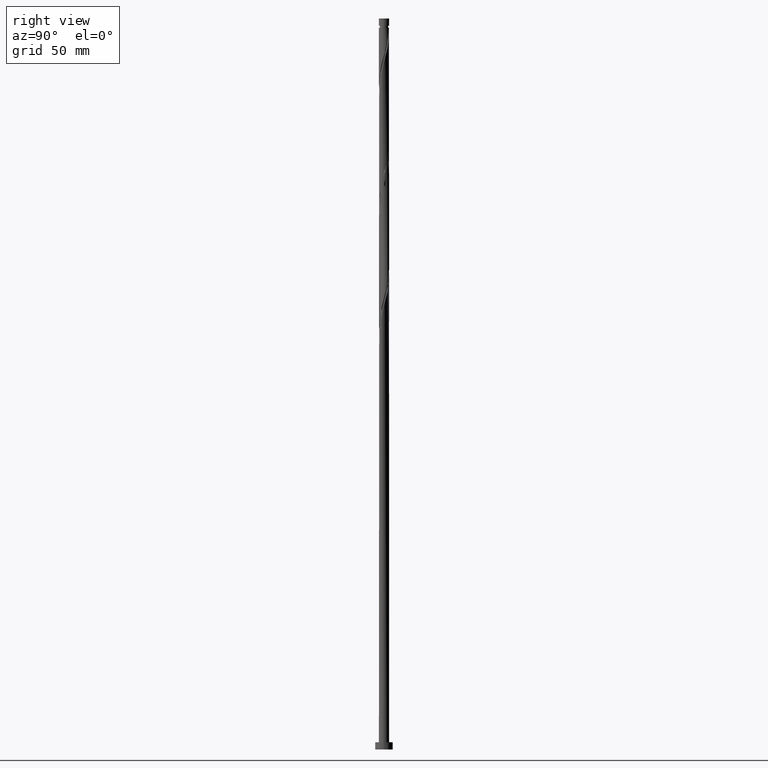
[diagram: clean part render]
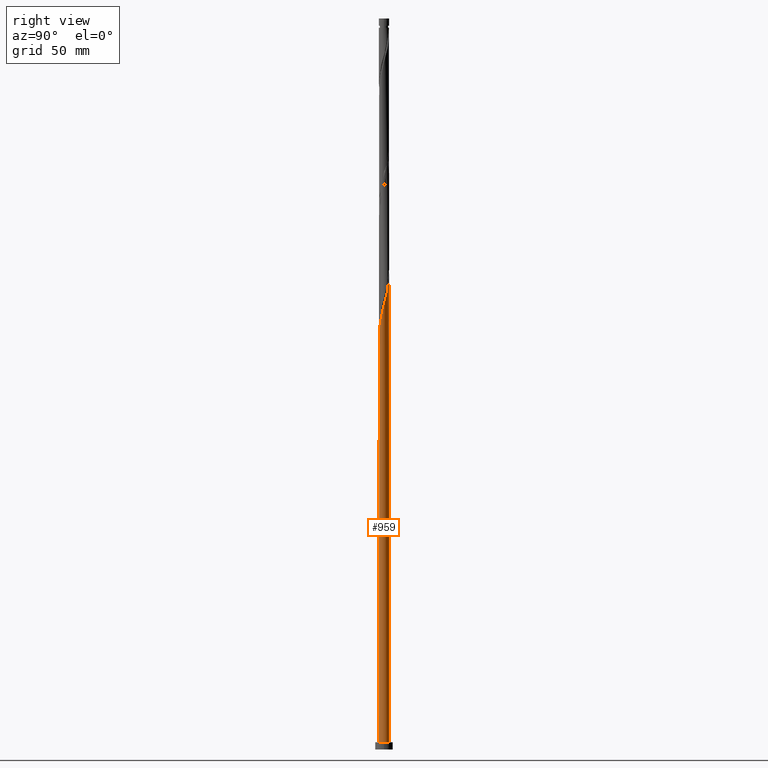
[diagram: same view with one face highlighted and labeled with its STEP entity id]
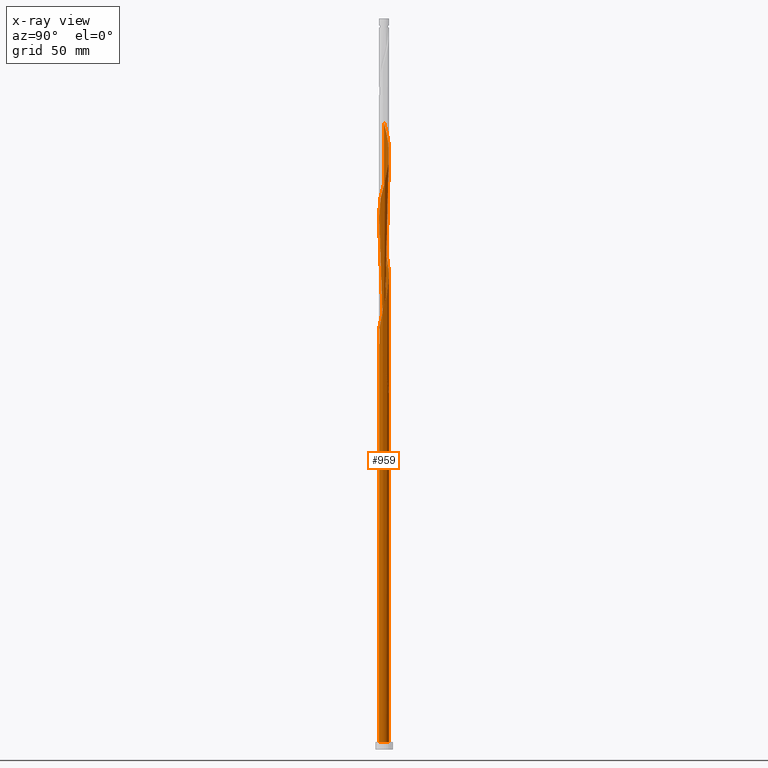
[diagram: x-ray of the same camera — body ghosted, the highlighted face saturated]
A machine part, right view. The second image highlights one B-rep face of the part: STEP entity #959.
The next image is the same camera in x-ray: the body ghosted, the highlighted face saturated — about 0% of this face is hidden behind the body in this view.
In plain terms, the highlighted cylindrical surface (bore or boss wall) has radius 3.5 mm, axis along (-0, -0, -1).
Its self-contained STEP definition (entity closure, byte-faithful):
#2 = CARTESIAN_POINT ( 'NONE',  ( -2.464990988598299460, -2.484717172261102558, 272.2755982235523788 ) ) ;
#10 = CARTESIAN_POINT ( 'NONE',  ( -3.108242234511735980, 1.645497502020135672, 422.0151815568856932 ) ) ;
#21 = CARTESIAN_POINT ( 'NONE',  ( -3.500000000000005329, 1.465902249526861745E-15, 261.8062345788887342 ) ) ;
#31 = CARTESIAN_POINT ( 'NONE',  ( -1.352268127265541686, 3.228214818128090524, 246.2339315568855795 ) ) ;
#35 = EDGE_CURVE ( 'NONE', #1387, #1543, #1063, .T. ) ;
#40 = CARTESIAN_POINT ( 'NONE',  ( -3.429999999999999272, 0.6964912059746389827, 264.4630982235522652 ) ) ;
#41 = CARTESIAN_POINT ( 'NONE',  ( -2.917869914251325358, 1.932882604688397121, 254.0464315568856080 ) ) ;
#47 = CARTESIAN_POINT ( 'NONE',  ( -1.670219535041369774, 3.095028032558543973, 330.8693482235523788 ) ) ;
#54 = CARTESIAN_POINT ( 'NONE',  ( -2.220267707356654796, 2.727497593990910296, 255.3485148902188655 ) ) ;
#60 = CARTESIAN_POINT ( 'NONE',  ( -3.435442441828192806, 0.6691302032381872822, 342.5880982235523788 ) ) ;
#65 = CARTESIAN_POINT ( 'NONE',  ( -1.007491750486607440, 3.369538869082595589, 250.1401815568856080 ) ) ;
#69 = CARTESIAN_POINT ( 'NONE',  ( 1.956078142786331409, -2.902371151199242494, 290.5047648902189508 ) ) ;
#81 = CARTESIAN_POINT ( 'NONE',  ( -0.3586656924595659213, 3.498598396302370794, 325.6610148902190076 ) ) ;
#90 = CARTESIAN_POINT ( 'NONE',  ( -0.3307686559897656253, -3.501346014573786913, 364.7235148902190076 ) ) ;
#116 = CARTESIAN_POINT ( 'NONE',  ( -3.228214818128090524, -1.352268127265541242, 350.4005982235523788 ) ) ;
#137 = ORIENTED_EDGE ( 'NONE', *, *, #1174, .T. ) ;
#139 = CARTESIAN_POINT ( 'NONE',  ( -2.709714269839941014, -2.241936750531294376, 270.9735148902190076 ) ) ;
#146 = CARTESIAN_POINT ( 'NONE',  ( -2.917869914251325358, 1.932882604688397121, 420.7130982235523220 ) ) ;
#156 = CARTESIAN_POINT ( 'NONE',  ( -2.241936750531293931, 2.709714269839941014, 416.8068482235524925 ) ) ;
#165 = CARTESIAN_POINT ( 'NONE',  ( -1.034316719489713376, 3.361401603697638851, 411.5985148902190076 ) ) ;
#179 = CARTESIAN_POINT ( 'NONE',  ( -3.500000000000007105, 0.3376793522514310308, 427.1969211401395228 ) ) ;
#193 = CARTESIAN_POINT ( 'NONE',  ( 2.917869914251324914, -1.932882604688397343, 295.7130982235522083 ) ) ;
#200 = CARTESIAN_POINT ( 'NONE',  ( -2.902371151199237165, 1.956078142786329632, 259.2547648902188939 ) ) ;
#206 = CARTESIAN_POINT ( 'NONE',  ( -0.01394851823489835253, 3.499972205438078632, 324.3589315568857501 ) ) ;
#216 = CARTESIAN_POINT ( 'NONE',  ( 3.435442441828192806, -0.6691302032381893916, 300.9214315568855795 ) ) ;
#238 = CARTESIAN_POINT ( 'NONE',  ( 3.095028032558544862, 1.670219535041368664, 310.0360148902190076 ) ) ;
#248 = CARTESIAN_POINT ( 'NONE',  ( 0.3586656924595647000, -3.498598396302370794, 367.3276815568856932 ) ) ;
#260 = CARTESIAN_POINT ( 'NONE',  ( -2.464990988598299460, -2.484717172261102558, 355.6089315568856364 ) ) ;
#291 = EDGE_CURVE ( 'NONE', #1731, #960, #1888, .T. ) ;
#296 = CARTESIAN_POINT ( 'NONE',  ( -2.484717172261103446, 2.464990988598299015, 418.1089315568855795 ) ) ;
#304 = DIRECTION ( 'NONE',  ( -1.000000000000000000, 0.000000000000000000, 0.000000000000000000 ) ) ;
#306 = CARTESIAN_POINT ( 'NONE',  ( 0.6691302032381896137, 3.435442441828192806, 405.0880982235523788 ) ) ;
#314 = CARTESIAN_POINT ( 'NONE',  ( -0.01394851823489835253, 3.499972205438078632, 407.6922648902190076 ) ) ;
#318 = CARTESIAN_POINT ( 'NONE',  ( -3.228214818128090524, -1.352268127265541242, 267.0672648902190076 ) ) ;
#324 = CARTESIAN_POINT ( 'NONE',  ( 1.645497502020138114, 3.108242234511735091, 401.1818482235524357 ) ) ;
#331 = CARTESIAN_POINT ( 'NONE',  ( -3.500000000000000000, 0.000000000000000000, 500.0000000000000000 ) ) ;
#336 = CARTESIAN_POINT ( 'NONE',  ( 2.902371151199241606, 1.956078142786332519, 394.6714315568856364 ) ) ;
#338 = CARTESIAN_POINT ( 'NONE',  ( -0.6691302032381876153, -3.435442441828192806, 280.0880982235522652 ) ) ;
#354 = CARTESIAN_POINT ( 'NONE',  ( -1.034316719489713376, 3.361401603697638851, 244.9318482235523220 ) ) ;
#358 = CARTESIAN_POINT ( 'NONE',  ( 1.326494626253372111, 3.238890551797167561, 319.1505982235523220 ) ) ;
#370 = CARTESIAN_POINT ( 'NONE',  ( 3.369538869082599586, -1.007491750486610105, 299.6193482235523788 ) ) ;
#375 = CARTESIAN_POINT ( 'NONE',  ( -3.228214818128085195, 1.352268127265539910, 261.8589315568855795 ) ) ;
#380 = CARTESIAN_POINT ( 'NONE',  ( 1.645497502020138114, 3.108242234511735091, 317.8485148902190076 ) ) ;
#381 = EDGE_CURVE ( 'NONE', #1512, #1731, #1283, .T. ) ;
#387 = VECTOR ( 'NONE', #1886, 1000.000000000000000 ) ;
#392 = CARTESIAN_POINT ( 'NONE',  ( 3.238890551797167561, -1.326494626253372111, 298.3172648902188939 ) ) ;
#407 = VERTEX_POINT ( 'NONE', #465 ) ;
#432 = CARTESIAN_POINT ( 'NONE',  ( -2.902371151199242050, -1.956078142786330964, 353.0047648902190076 ) ) ;
#454 = CARTESIAN_POINT ( 'NONE',  ( -3.499972205438078632, -0.01394851823489984613, 261.8589315568856364 ) ) ;
#460 = EDGE_CURVE ( 'NONE', #551, #1512, #1048, .T. ) ;
#462 = CARTESIAN_POINT ( 'NONE',  ( 3.238890551797167561, -1.326494626253372111, 381.6505982235523220 ) ) ;
#465 = CARTESIAN_POINT ( 'NONE',  ( -0.6964912059746383166, 3.430000000000003268, 243.6297648902189223 ) ) ;
#467 = CARTESIAN_POINT ( 'NONE',  ( -3.500000000000005329, 1.465902249526861745E-15, 428.4729012455554198 ) ) ;
#474 = CARTESIAN_POINT ( 'NONE',  ( 3.369538869082599586, -1.007491750486610105, 382.9526815568856932 ) ) ;
#483 = CYLINDRICAL_SURFACE ( 'NONE', #885, 3.500000000000000000 ) ;
#484 = CARTESIAN_POINT ( 'NONE',  ( 1.326494626253372111, 3.238890551797167561, 402.4839315568856932 ) ) ;
#485 = CARTESIAN_POINT ( 'NONE',  ( -2.220267707356660125, -2.727497593990912517, 273.5776815568856932 ) ) ;
#492 = CARTESIAN_POINT ( 'NONE',  ( -1.956078142786331853, 2.902371151199242050, 248.8380982235523220 ) ) ;
#504 = CARTESIAN_POINT ( 'NONE',  ( 3.499972205438078632, 0.01394851823489856243, 303.5255982235523788 ) ) ;
#510 = CARTESIAN_POINT ( 'NONE',  ( -2.484717172261103446, 2.464990988598299015, 251.4422648902189792 ) ) ;
#515 = CARTESIAN_POINT ( 'NONE',  ( 1.932882604688397565, 2.917869914251324470, 316.5464315568857501 ) ) ;
#535 = CARTESIAN_POINT ( 'NONE',  ( 2.709714269839941014, 2.241936750531293487, 312.6401815568856364 ) ) ;
#543 = AXIS2_PLACEMENT_3D ( 'NONE', #1093, #615, #304 ) ;
#544 = DIRECTION ( 'NONE',  ( 0.000000000000000000, 0.000000000000000000, 1.000000000000000000 ) ) ;
#551 = VERTEX_POINT ( 'NONE', #769 ) ;
#564 = CARTESIAN_POINT ( 'NONE',  ( 0.000000000000000000, 0.000000000000000000, 5.000000000000000000 ) ) ;
#592 = DIRECTION ( 'NONE',  ( -0.000000000000000000, -0.000000000000000000, -1.000000000000000000 ) ) ;
#595 = CARTESIAN_POINT ( 'NONE',  ( 2.709714269839941014, 2.241936750531293487, 395.9735148902190076 ) ) ;
#609 = CARTESIAN_POINT ( 'NONE',  ( -3.500000000000005329, 1.465902249526861745E-15, 261.8062345788887342 ) ) ;
#615 = DIRECTION ( 'NONE',  ( 0.000000000000000000, -0.000000000000000000, -1.000000000000000000 ) ) ;
#618 = CARTESIAN_POINT ( 'NONE',  ( 2.220267707356658793, 2.727497593990913849, 398.5776815568856932 ) ) ;
#625 = CARTESIAN_POINT ( 'NONE',  ( -1.956078142786331853, 2.902371151199242050, 415.5047648902189508 ) ) ;
#642 = CARTESIAN_POINT ( 'NONE',  ( 0.01394851823490045675, 3.499972205438072859, 246.2339315568855795 ) ) ;
#648 = CARTESIAN_POINT ( 'NONE',  ( 3.498598396302370794, 0.3586656924595661433, 304.8276815568857501 ) ) ;
#654 = CARTESIAN_POINT ( 'NONE',  ( -3.435442441828192806, 0.6691302032381872822, 259.2547648902189508 ) ) ;
#658 = CARTESIAN_POINT ( 'NONE',  ( -1.956078142786331853, 2.902371151199242050, 332.1714315568856932 ) ) ;
#666 = LINE ( 'NONE', #1284, #387 ) ;
#669 = CARTESIAN_POINT ( 'NONE',  ( -3.501346014573786913, 0.3307686559897652923, 343.8901815568856932 ) ) ;
#681 = CARTESIAN_POINT ( 'NONE',  ( 3.430000000000003268, 0.6964912059746386497, 306.1297648902190645 ) ) ;
#701 =( BOUNDED_CURVE ( )  B_SPLINE_CURVE ( 2, ( #1406, #354, #31, #1876, #492, #970, #510, #1415, #41, #948, #835, #1750, #654, #1574, #21 ),
 .UNSPECIFIED., .F., .T. ) 
 B_SPLINE_CURVE_WITH_KNOTS ( ( 3, 2, 2, 2, 2, 2, 2, 3 ),
 ( 0.000000000000000000, 0.007812500000000000000, 0.01562500000000000000, 0.02343750000000000000, 0.03125000000000000000, 0.03906250000000000000, 0.04687500000000000000, 0.05452869021808701838 ),
 .UNSPECIFIED. ) 
 CURVE ( )  GEOMETRIC_REPRESENTATION_ITEM ( )  RATIONAL_B_SPLINE_CURVE ( ( 0.9090909090909701229, 0.9047133878838761190, 0.9090909090909701229, 0.9047133878838761190, 0.9090909090909701229, 0.9047133878838761190, 0.9090909090909701229, 0.9047133878838761190, 0.9090909090909701229, 0.9047133878838761190, 0.9090909090909701229, 0.9047133878838761190, 0.9090909090909701229, 0.9048023726119680532, 0.9089165573359733186 ) ) 
 REPRESENTATION_ITEM ( '' )  );
#707 = ORIENTED_EDGE ( 'NONE', *, *, #786, .T. ) ;
#709 = CARTESIAN_POINT ( 'NONE',  ( -2.220267707356660125, -2.727497593990912517, 356.9110148902190076 ) ) ;
#734 = CARTESIAN_POINT ( 'NONE',  ( 0.000000000000000000, 0.000000000000000000, 5.000000000000000000 ) ) ;
#736 = CARTESIAN_POINT ( 'NONE',  ( 0.01394851823489888683, -3.499972205438078632, 366.0255982235523788 ) ) ;
#745 = CARTESIAN_POINT ( 'NONE',  ( -1.670219535041369774, 3.095028032558543973, 414.2026815568856364 ) ) ;
#746 = EDGE_CURVE ( 'NONE', #1543, #1387, #1084, .T. ) ;
#757 = CARTESIAN_POINT ( 'NONE',  ( 2.917869914251324914, -1.932882604688397343, 379.0464315568856364 ) ) ;
#769 = CARTESIAN_POINT ( 'NONE',  ( -3.500000000000005329, 1.465902249526861745E-15, 261.8062345788887342 ) ) ;
#771 = CARTESIAN_POINT ( 'NONE',  ( -3.361401603697638851, -1.034316719489713376, 265.7651815568856932 ) ) ;
#775 = CARTESIAN_POINT ( 'NONE',  ( 0.6964912059746396489, 3.429999999999999272, 243.6297648902189223 ) ) ;
#778 = CARTESIAN_POINT ( 'NONE',  ( 1.670219535041369330, -3.095028032558544862, 372.5360148902190076 ) ) ;
#786 = EDGE_CURVE ( 'NONE', #407, #960, #1754, .T. ) ;
#789 = ORIENTED_EDGE ( 'NONE', *, *, #381, .F. ) ;
#790 = CARTESIAN_POINT ( 'NONE',  ( 3.095028032558544862, 1.670219535041368664, 393.3693482235523788 ) ) ;
#798 = CARTESIAN_POINT ( 'NONE',  ( -0.3307686559897644041, 3.501346014573782028, 247.5360148902189223 ) ) ;
#803 = CARTESIAN_POINT ( 'NONE',  ( 3.501346014573786913, -0.3307686559897658474, 302.2235148902190076 ) ) ;
#804 = CARTESIAN_POINT ( 'NONE',  ( -3.500000000000000000, 0.000000000000000000, 5.000000000000000000 ) ) ;
#814 = CARTESIAN_POINT ( 'NONE',  ( -1.034316719489713376, 3.361401603697638851, 328.2651815568856364 ) ) ;
#826 = CARTESIAN_POINT ( 'NONE',  ( -3.238890551797167561, 1.326494626253372555, 339.9839315568856364 ) ) ;
#834 = CARTESIAN_POINT ( 'NONE',  ( -3.361401603697633078, 1.034316719489712710, 263.1610148902189508 ) ) ;
#835 = CARTESIAN_POINT ( 'NONE',  ( -3.238890551797167561, 1.326494626253372555, 256.6505982235523220 ) ) ;
#839 = CARTESIAN_POINT ( 'NONE',  ( -3.499999999999999112, -6.113362210359989773E-16, 267.1199618682157393 ) ) ;
#854 = ORIENTED_EDGE ( 'NONE', *, *, #1174, .F. ) ;
#885 = AXIS2_PLACEMENT_3D ( 'NONE', #1500, #592, #918 ) ;
#887 = CARTESIAN_POINT ( 'NONE',  ( -1.007491750486610105, -3.369538869082599586, 362.1193482235523220 ) ) ;
#910 = CARTESIAN_POINT ( 'NONE',  ( 3.501346014573786913, -0.3307686559897658474, 385.5568482235524357 ) ) ;
#918 = DIRECTION ( 'NONE',  ( -1.000000000000000000, 0.000000000000000000, 0.000000000000000000 ) ) ;
#921 = CARTESIAN_POINT ( 'NONE',  ( -3.500000000000005329, 1.465902249526861745E-15, 428.4729012455554198 ) ) ;
#928 = CARTESIAN_POINT ( 'NONE',  ( 3.228214818128089636, 1.352268127265541686, 392.0672648902190076 ) ) ;
#934 = CARTESIAN_POINT ( 'NONE',  ( -3.095028032558539088, 1.670219535041367775, 260.5568482235523220 ) ) ;
#938 = CARTESIAN_POINT ( 'NONE',  ( -3.435442441828192806, 0.6691302032381872822, 425.9214315568856932 ) ) ;
#940 = CARTESIAN_POINT ( 'NONE',  ( -0.3307686559897656253, -3.501346014573786913, 281.3901815568856364 ) ) ;
#948 = CARTESIAN_POINT ( 'NONE',  ( -3.108242234511735980, 1.645497502020135672, 255.3485148902189792 ) ) ;
#949 = EDGE_LOOP ( 'NONE', ( #789, #1889, #137, #1426, #1264, #854, #1357, #707, #1923 ) ) ;
#959 = ADVANCED_FACE ( 'NONE', ( #1652 ), #483, .T. ) ;
#960 = VERTEX_POINT ( 'NONE', #775 ) ;
#963 = CARTESIAN_POINT ( 'NONE',  ( 1.007491750486610549, 3.369538869082599142, 320.4526815568856932 ) ) ;
#969 = CARTESIAN_POINT ( 'NONE',  ( -1.645497502020132563, 3.108242234511732427, 252.7443482235522936 ) ) ;
#970 = CARTESIAN_POINT ( 'NONE',  ( -2.241936750531293931, 2.709714269839941014, 250.1401815568856080 ) ) ;
#973 = CARTESIAN_POINT ( 'NONE',  ( -2.727497593990913405, 2.220267707356659237, 336.0776815568857501 ) ) ;
#983 = CARTESIAN_POINT ( 'NONE',  ( -3.499972205438078632, -0.01394851823489984613, 345.1922648902190076 ) ) ;
#991 = CARTESIAN_POINT ( 'NONE',  ( -0.6964912059746384276, 3.430000000000003268, 326.9630982235524357 ) ) ;
#1039 = CARTESIAN_POINT ( 'NONE',  ( -1.932882604688397343, -2.917869914251324914, 358.2130982235523220 ) ) ;
#1045 = EDGE_CURVE ( 'NONE', #407, #551, #701, .T. ) ;
#1048 =( BOUNDED_CURVE ( )  B_SPLINE_CURVE ( 2, ( #609, #1836, #454, #1247, #1088, #771, #318, #1370, #1256, #139, #2, #485, #1817, #1096, #1698, #1226, #338, #940, #1860, #1107, #1360, #1828, #1076, #1408, #69, #1868, #1558, #1153, #193, #1744, #392, #370, #216, #803, #504, #648, #681, #1720, #1296, #238, #1899, #535, #1880, #1755, #515, #380, #358, #963, #1568, #1142, #206, #81, #991, #814, #1419, #47, #658, #1594, #1131, #973, #1277, #1579, #826, #1430, #60, #669, #983, #1286, #1890, #1799, #116, #1782, #432, #1620, #260, #709, #1039, #1773, #1643, #887, #1612, #90, #736, #248, #1461, #1062, #1973, #778, #1983, #1052, #1525, #1388, #757, #1503, #462, #474, #1224, #910, #1683, #1825, #1244, #1664, #928, #790, #336, #595, #1695, #618, #1074, #324, #484, #1814, #306, #1671, #314, #1535, #1083, #165, #1544, #745, #625, #156, #296, #1513, #146, #10, #1845, #1095, #938, #179, #921 ),
 .UNSPECIFIED., .F., .T. ) 
 B_SPLINE_CURVE_WITH_KNOTS ( ( 3, 2, 2, 2, 2, 2, 2, 2, 2, 2, 2, 2, 2, 2, 2, 2, 2, 2, 2, 2, 2, 2, 2, 2, 2, 2, 2, 2, 2, 2, 2, 2, 2, 2, 2, 2, 2, 2, 2, 2, 2, 2, 2, 2, 2, 2, 2, 2, 2, 2, 2, 2, 2, 2, 2, 2, 2, 2, 2, 2, 2, 2, 2, 2, 2, 3 ),
 ( 0.05452869021808701838, 0.05468750000000000000, 0.06250000000000000000, 0.07031250000000000000, 0.07812500000000000000, 0.08593750000000000000, 0.09375000000000000000, 0.1015625000000000000, 0.1093750000000000000, 0.1171875000000000000, 0.1250000000000000000, 0.1328125000000000000, 0.1406250000000000000, 0.1484375000000000000, 0.1562500000000000000, 0.1640625000000000000, 0.1718750000000000000, 0.1796875000000000000, 0.1875000000000000000, 0.1953125000000000000, 0.2031250000000000000, 0.2109375000000000000, 0.2187500000000000000, 0.2265625000000000000, 0.2343750000000000000, 0.2421875000000000000, 0.2500000000000000000, 0.2578125000000000000, 0.2656250000000000000, 0.2734375000000000000, 0.2812500000000000000, 0.2890625000000000000, 0.2968750000000000000, 0.3046875000000000000, 0.3125000000000000000, 0.3203125000000000000, 0.3281250000000000000, 0.3359375000000000000, 0.3437500000000000000, 0.3515625000000000000, 0.3593750000000000000, 0.3671875000000000000, 0.3750000000000000000, 0.3828125000000000000, 0.3906250000000000000, 0.3984375000000000000, 0.4062500000000000000, 0.4140625000000000000, 0.4218750000000000000, 0.4296875000000000000, 0.4375000000000000000, 0.4453125000000000000, 0.4531250000000000000, 0.4609375000000000000, 0.4687500000000000000, 0.4765625000000000000, 0.4843750000000000000, 0.4921875000000000000, 0.5000000000000000000, 0.5078125000000000000, 0.5156250000000000000, 0.5234375000000000000, 0.5312500000000000000, 0.5390625000000000000, 0.5468750000000000000, 0.5545286902180872612 ),
 .UNSPECIFIED. ) 
 CURVE ( )  GEOMETRIC_REPRESENTATION_ITEM ( )  RATIONAL_B_SPLINE_CURVE ( ( 0.9089165573359733186, 0.9090019243628781886, 0.9090909090909701229, 0.9047133878838761190, 0.9090909090909701229, 0.9047133878838761190, 0.9090909090909701229, 0.9047133878838761190, 0.9090909090909701229, 0.9047133878838761190, 0.9090909090909701229, 0.9047133878838761190, 0.9090909090909701229, 0.9047133878838761190, 0.9090909090909701229, 0.9047133878838761190, 0.9090909090909701229, 0.9047133878838761190, 0.9090909090909701229, 0.9047133878838761190, 0.9090909090909701229, 0.9047133878838761190, 0.9090909090909701229, 0.9047133878838761190, 0.9090909090909701229, 0.9047133878838761190, 0.9090909090909701229, 0.9047133878838761190, 0.9090909090909701229, 0.9047133878838761190, 0.9090909090909701229, 0.9047133878838761190, 0.9090909090909701229, 0.9047133878838761190, 0.9090909090909701229, 0.9047133878838761190, 0.9090909090909701229, 0.9047133878838761190, 0.9090909090909701229, 0.9047133878838761190, 0.9090909090909701229, 0.9047133878838761190, 0.9090909090909701229, 0.9047133878838761190, 0.9090909090909701229, 0.9047133878838761190, 0.9090909090909701229, 0.9047133878838761190, 0.9090909090909701229, 0.9047133878838761190, 0.9090909090909701229, 0.9047133878838761190, 0.9090909090909701229, 0.9047133878838761190, 0.9090909090909701229, 0.9047133878838761190, 0.9090909090909701229, 0.9047133878838761190, 0.9090909090909701229, 0.9047133878838761190, 0.9090909090909701229, 0.9047133878838761190, 0.9090909090909701229, 0.9047133878838761190, 0.9090909090909701229, 0.9047133878838761190, 0.9090909090909701229, 0.9047133878838761190, 0.9090909090909701229, 0.9047133878838761190, 0.9090909090909701229, 0.9047133878838761190, 0.9090909090909701229, 0.9047133878838761190, 0.9090909090909701229, 0.9047133878838761190, 0.9090909090909701229, 0.9047133878838761190, 0.9090909090909701229, 0.9047133878838761190, 0.9090909090909701229, 0.9047133878838761190, 0.9090909090909701229, 0.9047133878838761190, 0.9090909090909701229, 0.9047133878838761190, 0.9090909090909701229, 0.9047133878838761190, 0.9090909090909701229, 0.9047133878838761190, 0.9090909090909701229, 0.9047133878838761190, 0.9090909090909701229, 0.9047133878838761190, 0.9090909090909701229, 0.9047133878838761190, 0.9090909090909701229, 0.9047133878838761190, 0.9090909090909701229, 0.9047133878838761190, 0.9090909090909701229, 0.9047133878838761190, 0.9090909090909701229, 0.9047133878838761190, 0.9090909090909701229, 0.9047133878838761190, 0.9090909090909701229, 0.9047133878838761190, 0.9090909090909701229, 0.9047133878838761190, 0.9090909090909701229, 0.9047133878838761190, 0.9090909090909701229, 0.9047133878838761190, 0.9090909090909701229, 0.9047133878838761190, 0.9090909090909701229, 0.9047133878838761190, 0.9090909090909701229, 0.9047133878838761190, 0.9090909090909701229, 0.9047133878838761190, 0.9090909090909701229, 0.9047133878838761190, 0.9090909090909701229, 0.9047133878838761190, 0.9090909090909701229, 0.9047133878838761190, 0.9090909090909701229, 0.9048023726119678312, 0.9089165573359736516 ) ) 
 REPRESENTATION_ITEM ( '' )  );
#1052 = CARTESIAN_POINT ( 'NONE',  ( 2.241936750531293931, -2.709714269839941014, 375.1401815568856932 ) ) ;
#1062 = CARTESIAN_POINT ( 'NONE',  ( 1.034316719489713154, -3.361401603697638851, 369.9318482235523788 ) ) ;
#1063 = CIRCLE ( 'NONE', #1444, 3.500000000000000000 ) ;
#1074 = CARTESIAN_POINT ( 'NONE',  ( 1.932882604688397565, 2.917869914251324470, 399.8797648902189508 ) ) ;
#1076 = CARTESIAN_POINT ( 'NONE',  ( 1.352268127265541908, -3.228214818128089636, 287.9005982235523788 ) ) ;
#1083 = CARTESIAN_POINT ( 'NONE',  ( -0.6964912059746384276, 3.430000000000003268, 410.2964315568856932 ) ) ;
#1084 = CIRCLE ( 'NONE', #1678, 3.500000000000000000 ) ;
#1088 = CARTESIAN_POINT ( 'NONE',  ( -3.430000000000003268, -0.6964912059746392048, 264.4630982235523788 ) ) ;
#1092 = CARTESIAN_POINT ( 'NONE',  ( -2.709714269839936129, 2.241936750531290823, 257.9526815568856364 ) ) ;
#1093 = CARTESIAN_POINT ( 'NONE',  ( 0.000000000000000000, 0.000000000000000000, 243.6297648902189223 ) ) ;
#1095 = CARTESIAN_POINT ( 'NONE',  ( -3.369538869082599586, 1.007491750486610105, 424.6193482235523788 ) ) ;
#1096 = CARTESIAN_POINT ( 'NONE',  ( -1.645497502020135450, -3.108242234511735980, 276.1818482235523788 ) ) ;
#1107 = CARTESIAN_POINT ( 'NONE',  ( 0.3586656924595647000, -3.498598396302370794, 283.9943482235523788 ) ) ;
#1131 = CARTESIAN_POINT ( 'NONE',  ( -2.484717172261103446, 2.464990988598299015, 334.7755982235523220 ) ) ;
#1137 = CARTESIAN_POINT ( 'NONE',  ( -2.464990988598295907, 2.484717172261100337, 256.6505982235522652 ) ) ;
#1142 = CARTESIAN_POINT ( 'NONE',  ( 0.3307686559897658474, 3.501346014573786913, 323.0568482235523788 ) ) ;
#1153 = CARTESIAN_POINT ( 'NONE',  ( 2.727497593990912073, -2.220267707356660125, 294.4110148902190076 ) ) ;
#1160 = DIRECTION ( 'NONE',  ( 1.000000000000000000, 0.000000000000000000, 0.000000000000000000 ) ) ;
#1174 = EDGE_CURVE ( 'NONE', #551, #1387, #666, .T. ) ;
#1224 = CARTESIAN_POINT ( 'NONE',  ( 3.435442441828192806, -0.6691302032381893916, 384.2547648902190076 ) ) ;
#1226 = CARTESIAN_POINT ( 'NONE',  ( -1.007491750486610105, -3.369538869082599586, 278.7860148902190076 ) ) ;
#1231 = CARTESIAN_POINT ( 'NONE',  ( -3.499999999999999112, -6.113362210359989773E-16, 267.1199618682157393 ) ) ;
#1244 = CARTESIAN_POINT ( 'NONE',  ( 3.430000000000003268, 0.6964912059746386497, 389.4630982235523788 ) ) ;
#1247 = CARTESIAN_POINT ( 'NONE',  ( -3.498598396302370794, -0.3586656924595649221, 263.1610148902189508 ) ) ;
#1256 = CARTESIAN_POINT ( 'NONE',  ( -2.902371151199242050, -1.956078142786330964, 269.6714315568856932 ) ) ;
#1257 = VECTOR ( 'NONE', #1541, 1000.000000000000000 ) ;
#1264 = ORIENTED_EDGE ( 'NONE', *, *, #746, .T. ) ;
#1270 = CARTESIAN_POINT ( 'NONE',  ( -0.6691302032381861720, 3.435442441828187476, 248.8380982235522083 ) ) ;
#1277 = CARTESIAN_POINT ( 'NONE',  ( -2.917869914251325358, 1.932882604688397121, 337.3797648902189508 ) ) ;
#1283 = LINE ( 'NONE', #331, #1257 ) ;
#1284 = CARTESIAN_POINT ( 'NONE',  ( -3.500000000000000000, 0.000000000000000000, 500.0000000000000000 ) ) ;
#1286 = CARTESIAN_POINT ( 'NONE',  ( -3.498598396302370794, -0.3586656924595649221, 346.4943482235523788 ) ) ;
#1296 = CARTESIAN_POINT ( 'NONE',  ( 3.228214818128089636, 1.352268127265541686, 308.7339315568856364 ) ) ;
#1355 = DIRECTION ( 'NONE',  ( 0.000000000000000000, 0.000000000000000000, 1.000000000000000000 ) ) ;
#1357 = ORIENTED_EDGE ( 'NONE', *, *, #1045, .F. ) ;
#1360 = CARTESIAN_POINT ( 'NONE',  ( 0.6964912059746388717, -3.430000000000003268, 285.2964315568856932 ) ) ;
#1370 = CARTESIAN_POINT ( 'NONE',  ( -3.095028032558544862, -1.670219535041369330, 268.3693482235523788 ) ) ;
#1387 = VERTEX_POINT ( 'NONE', #804 ) ;
#1388 = CARTESIAN_POINT ( 'NONE',  ( 2.727497593990912073, -2.220267707356660125, 377.7443482235523220 ) ) ;
#1406 = CARTESIAN_POINT ( 'NONE',  ( -0.6964912059746383166, 3.430000000000003268, 243.6297648902189223 ) ) ;
#1408 = CARTESIAN_POINT ( 'NONE',  ( 1.670219535041369330, -3.095028032558544862, 289.2026815568856932 ) ) ;
#1415 = CARTESIAN_POINT ( 'NONE',  ( -2.727497593990913405, 2.220267707356659237, 252.7443482235524073 ) ) ;
#1419 = CARTESIAN_POINT ( 'NONE',  ( -1.352268127265541686, 3.228214818128090524, 329.5672648902190076 ) ) ;
#1426 = ORIENTED_EDGE ( 'NONE', *, *, #35, .T. ) ;
#1430 = CARTESIAN_POINT ( 'NONE',  ( -3.369538869082599586, 1.007491750486610105, 341.2860148902189508 ) ) ;
#1444 = AXIS2_PLACEMENT_3D ( 'NONE', #564, #544, #1160 ) ;
#1461 = CARTESIAN_POINT ( 'NONE',  ( 0.6964912059746388717, -3.430000000000003268, 368.6297648902190076 ) ) ;
#1500 = CARTESIAN_POINT ( 'NONE',  ( 0.000000000000000000, 0.000000000000000000, 500.0000000000000000 ) ) ;
#1503 = CARTESIAN_POINT ( 'NONE',  ( 3.108242234511735980, -1.645497502020138114, 380.3485148902190645 ) ) ;
#1512 = VERTEX_POINT ( 'NONE', #467 ) ;
#1513 = CARTESIAN_POINT ( 'NONE',  ( -2.727497593990913405, 2.220267707356659237, 419.4110148902189508 ) ) ;
#1525 = CARTESIAN_POINT ( 'NONE',  ( 2.484717172261102558, -2.464990988598299904, 376.4422648902189508 ) ) ;
#1535 = CARTESIAN_POINT ( 'NONE',  ( -0.3586656924595659213, 3.498598396302370794, 408.9943482235523788 ) ) ;
#1541 = DIRECTION ( 'NONE',  ( -0.000000000000000000, -0.000000000000000000, -1.000000000000000000 ) ) ;
#1543 = VERTEX_POINT ( 'NONE', #1687 ) ;
#1544 = CARTESIAN_POINT ( 'NONE',  ( -1.352268127265541686, 3.228214818128090524, 412.9005982235522652 ) ) ;
#1550 = CARTESIAN_POINT ( 'NONE',  ( -3.498598396302364577, 0.3586656924595653662, 265.7651815568856364 ) ) ;
#1558 = CARTESIAN_POINT ( 'NONE',  ( 2.484717172261102558, -2.464990988598299904, 293.1089315568856932 ) ) ;
#1568 = CARTESIAN_POINT ( 'NONE',  ( 0.6691302032381896137, 3.435442441828192806, 321.7547648902190076 ) ) ;
#1574 = CARTESIAN_POINT ( 'NONE',  ( -3.500000000000004441, 0.3376793522514414114, 260.5302544734727235 ) ) ;
#1579 = CARTESIAN_POINT ( 'NONE',  ( -3.108242234511735980, 1.645497502020135672, 338.6818482235523788 ) ) ;
#1594 = CARTESIAN_POINT ( 'NONE',  ( -2.241936750531293931, 2.709714269839941014, 333.4735148902190645 ) ) ;
#1612 = CARTESIAN_POINT ( 'NONE',  ( -0.6691302032381876153, -3.435442441828192806, 363.4214315568856932 ) ) ;
#1620 = CARTESIAN_POINT ( 'NONE',  ( -2.709714269839941014, -2.241936750531294376, 354.3068482235523788 ) ) ;
#1643 = CARTESIAN_POINT ( 'NONE',  ( -1.326494626253372111, -3.238890551797168005, 360.8172648902190076 ) ) ;
#1652 = FACE_OUTER_BOUND ( 'NONE', #949, .T. ) ;
#1660 = DIRECTION ( 'NONE',  ( 1.000000000000000000, 0.000000000000000000, 0.000000000000000000 ) ) ;
#1664 = CARTESIAN_POINT ( 'NONE',  ( 3.361401603697638851, 1.034316719489711378, 390.7651815568856932 ) ) ;
#1668 = CARTESIAN_POINT ( 'NONE',  ( -3.499972205438072859, 0.01394851823490067012, 267.0672648902189508 ) ) ;
#1671 = CARTESIAN_POINT ( 'NONE',  ( 0.3307686559897658474, 3.501346014573786913, 406.3901815568856364 ) ) ;
#1678 = AXIS2_PLACEMENT_3D ( 'NONE', #734, #1355, #1660 ) ;
#1683 = CARTESIAN_POINT ( 'NONE',  ( 3.499972205438078632, 0.01394851823489856243, 386.8589315568856932 ) ) ;
#1687 = CARTESIAN_POINT ( 'NONE',  ( 3.500000000000000000, 0.000000000000000000, 5.000000000000000000 ) ) ;
#1691 = CARTESIAN_POINT ( 'NONE',  ( -1.932882604688393346, 2.917869914251320917, 254.0464315568855511 ) ) ;
#1695 = CARTESIAN_POINT ( 'NONE',  ( 2.464990988598299904, 2.484717172261102558, 397.2755982235523220 ) ) ;
#1698 = CARTESIAN_POINT ( 'NONE',  ( -1.326494626253372111, -3.238890551797168005, 277.4839315568855795 ) ) ;
#1720 = CARTESIAN_POINT ( 'NONE',  ( 3.361401603697638851, 1.034316719489711378, 307.4318482235523788 ) ) ;
#1731 = VERTEX_POINT ( 'NONE', #839 ) ;
#1737 = CARTESIAN_POINT ( 'NONE',  ( 0.3586656924595654217, 3.498598396302364577, 244.9318482235522083 ) ) ;
#1744 = CARTESIAN_POINT ( 'NONE',  ( 3.108242234511735980, -1.645497502020138114, 297.0151815568855795 ) ) ;
#1750 = CARTESIAN_POINT ( 'NONE',  ( -3.369538869082599586, 1.007491750486610105, 257.9526815568856932 ) ) ;
#1754 = CIRCLE ( 'NONE', #543, 3.500000000000000000 ) ;
#1755 = CARTESIAN_POINT ( 'NONE',  ( 2.220267707356658793, 2.727497593990913849, 315.2443482235523788 ) ) ;
#1773 = CARTESIAN_POINT ( 'NONE',  ( -1.645497502020135450, -3.108242234511735980, 359.5151815568856364 ) ) ;
#1782 = CARTESIAN_POINT ( 'NONE',  ( -3.095028032558544862, -1.670219535041369330, 351.7026815568856932 ) ) ;
#1799 = CARTESIAN_POINT ( 'NONE',  ( -3.361401603697638851, -1.034316719489713376, 349.0985148902190076 ) ) ;
#1814 = CARTESIAN_POINT ( 'NONE',  ( 1.007491750486610549, 3.369538869082599142, 403.7860148902189508 ) ) ;
#1817 = CARTESIAN_POINT ( 'NONE',  ( -1.932882604688397343, -2.917869914251324914, 274.8797648902190076 ) ) ;
#1821 = CARTESIAN_POINT ( 'NONE',  ( -3.499999999999999556, 0.006974286809918709903, 267.0936083136984962 ) ) ;
#1825 = CARTESIAN_POINT ( 'NONE',  ( 3.498598396302370794, 0.3586656924595661433, 388.1610148902189508 ) ) ;
#1828 = CARTESIAN_POINT ( 'NONE',  ( 1.034316719489713154, -3.361401603697638851, 286.5985148902189508 ) ) ;
#1836 = CARTESIAN_POINT ( 'NONE',  ( -3.500000000000005329, -0.006974286809907204350, 261.8325881334060341 ) ) ;
#1845 = CARTESIAN_POINT ( 'NONE',  ( -3.238890551797167561, 1.326494626253372555, 423.3172648902190076 ) ) ;
#1852 = CARTESIAN_POINT ( 'NONE',  ( -1.326494626253369669, 3.238890551797163564, 251.4422648902188655 ) ) ;
#1860 = CARTESIAN_POINT ( 'NONE',  ( 0.01394851823489888683, -3.499972205438078632, 282.6922648902190076 ) ) ;
#1868 = CARTESIAN_POINT ( 'NONE',  ( 2.241936750531293931, -2.709714269839941014, 291.8068482235524357 ) ) ;
#1875 = CARTESIAN_POINT ( 'NONE',  ( 0.6964912059746396489, 3.429999999999999272, 243.6297648902189223 ) ) ;
#1876 = CARTESIAN_POINT ( 'NONE',  ( -1.670219535041369774, 3.095028032558543973, 247.5360148902190076 ) ) ;
#1880 = CARTESIAN_POINT ( 'NONE',  ( 2.464990988598299904, 2.484717172261102558, 313.9422648902190645 ) ) ;
#1886 = DIRECTION ( 'NONE',  ( -0.000000000000000000, -0.000000000000000000, -1.000000000000000000 ) ) ;
#1888 =( BOUNDED_CURVE ( )  B_SPLINE_CURVE ( 2, ( #1231, #1821, #1668, #1550, #40, #834, #375, #934, #200, #1092, #1137, #54, #1691, #969, #1852, #65, #1270, #798, #642, #1737, #1875 ),
 .UNSPECIFIED., .F., .T. ) 
 B_SPLINE_CURVE_WITH_KNOTS ( ( 3, 2, 2, 2, 2, 2, 2, 2, 2, 2, 3 ),
 ( 0.9295286902180872612, 0.9296875000000000000, 0.9375000000000000000, 0.9453125000000000000, 0.9531250000000000000, 0.9609375000000000000, 0.9687500000000000000, 0.9765625000000000000, 0.9843750000000000000, 0.9921875000000000000, 1.000000000000000000 ),
 .UNSPECIFIED. ) 
 CURVE ( )  GEOMETRIC_REPRESENTATION_ITEM ( )  RATIONAL_B_SPLINE_CURVE ( ( 0.9089165573359687667, 0.9090019243628735257, 0.9090909090909653489, 0.9047133878838712340, 0.9090909090909653489, 0.9047133878838712340, 0.9090909090909653489, 0.9047133878838712340, 0.9090909090909653489, 0.9047133878838712340, 0.9090909090909653489, 0.9047133878838712340, 0.9090909090909653489, 0.9047133878838712340, 0.9090909090909653489, 0.9047133878838712340, 0.9090909090909653489, 0.9047133878838712340, 0.9090909090909653489, 0.9047133878838712340, 0.9090909090909653489 ) ) 
 REPRESENTATION_ITEM ( '' )  );
#1889 = ORIENTED_EDGE ( 'NONE', *, *, #460, .F. ) ;
#1890 = CARTESIAN_POINT ( 'NONE',  ( -3.430000000000003268, -0.6964912059746392048, 347.7964315568856932 ) ) ;
#1899 = CARTESIAN_POINT ( 'NONE',  ( 2.902371151199241606, 1.956078142786332519, 311.3380982235523220 ) ) ;
#1923 = ORIENTED_EDGE ( 'NONE', *, *, #291, .F. ) ;
#1973 = CARTESIAN_POINT ( 'NONE',  ( 1.352268127265541908, -3.228214818128089636, 371.2339315568856932 ) ) ;
#1983 = CARTESIAN_POINT ( 'NONE',  ( 1.956078142786331409, -2.902371151199242494, 373.8380982235522652 ) ) ;